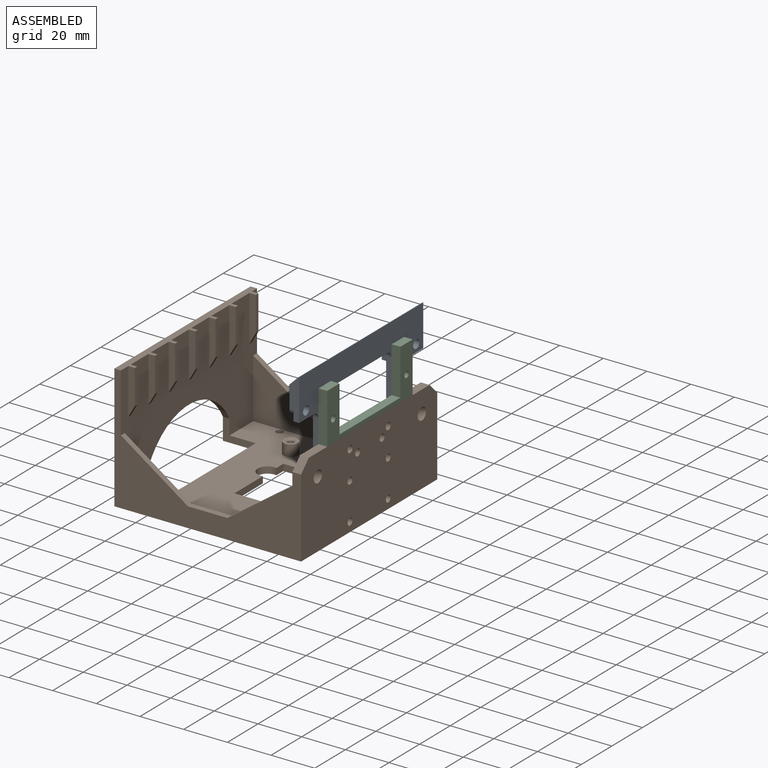
[diagram: assembled view]
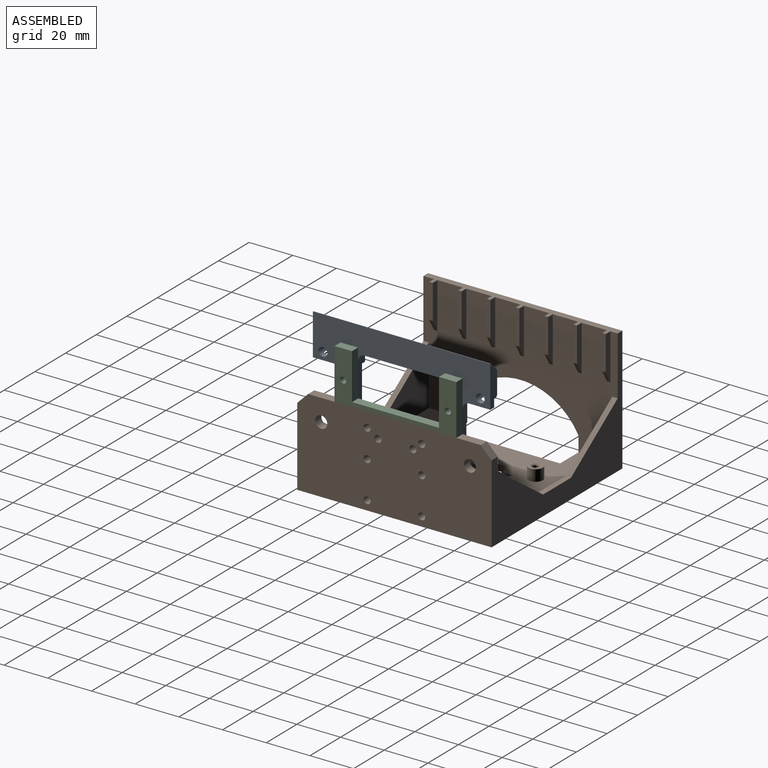
[diagram: assembled view, second angle]
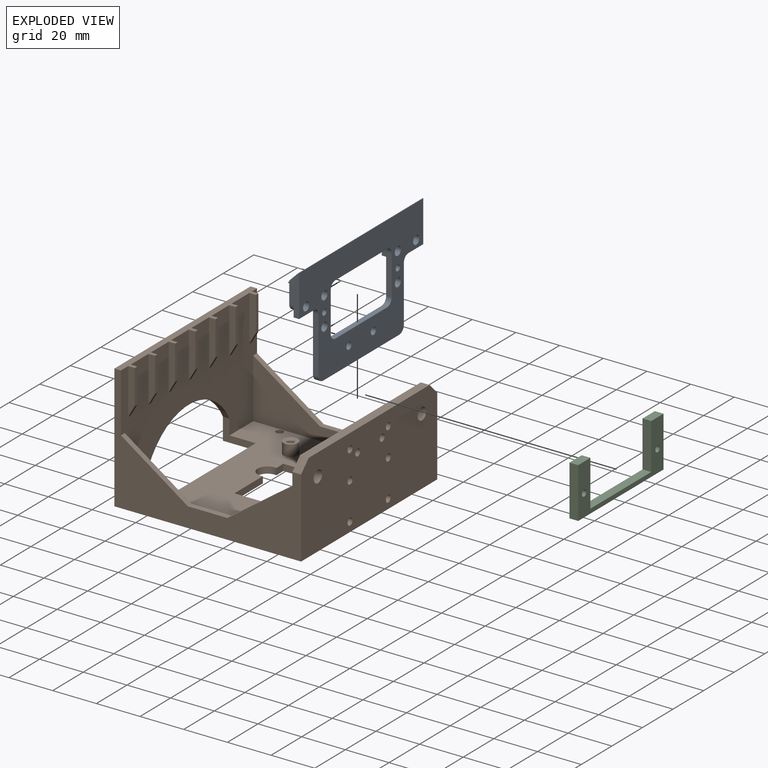
[diagram: exploded view]
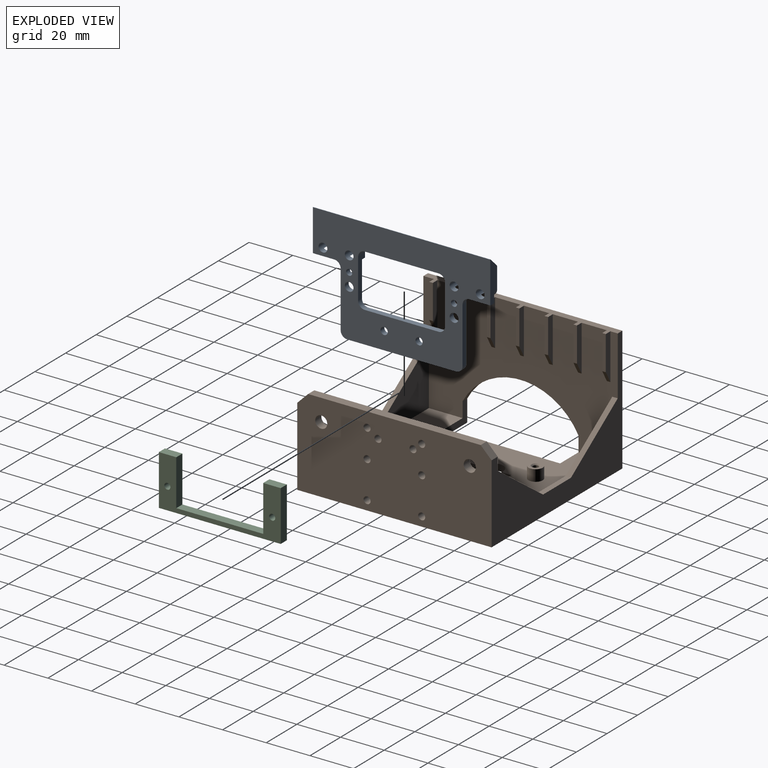
[diagram: exploded view, second angle]
ASSEMBLY  parts=3 mates=2
PART A: 45 faces, bbox 81.2x7.3x50.5 mm
  f0: plane 81.2x12.75mm, normal (0,-1,0), area 582.5mm2, adj f2,f3,f4,f5,f6,f8,f9,f11
  f1: plane 81.2x50.5mm, normal (0,1,0), area 2242.2mm2, adj f8,f9,f10,f12,f13,f14,f15,f16
  f2: plane 9.35x2mm, normal (0,0,-1), area 18.7mm2, adj f0,f7,f25,f30
  f3: plane 2x0.28mm, normal (0,0,-1), area 0.6mm2, adj f0,f7,f28,f39
  f4: plane 9.35x2mm, normal (0,0,-1), area 18.7mm2, adj f0,f7,f27,f28
  f5: plane 2.78x2mm, normal (0,0,-1), area 5.6mm2, adj f0,f7,f22,f25
  f6: plane 2x0.28mm, normal (0,0,-1), area 0.6mm2, adj f0,f7,f30,f40
  f7: plane 81.2x36.5mm, normal (0,-1,0), area 1107.5mm2, adj f2,f3,f4,f5,f6,f8,f9,f11
  f8: plane 19x4.5mm, normal (-1,0,0), area 66.5mm2, adj f0,f1,f7,f10,f13,f40,f44
  f9: plane 19x4.5mm, normal (1,0,0), area 66.5mm2, adj f0,f1,f7,f10,f14,f39,f44
  f10: plane 81.2x0.25mm, normal (0,0,1), area 20.3mm2, adj f1,f8,f9,f44
  f11: plane 2.78x2mm, normal (0,0,-1), area 5.6mm2, adj f0,f7,f23,f27
  f12: plane 25.5x2.5mm, normal (-1,0,0), area 63.8mm2, adj f1,f7,f36,f37
  f13: plane 9.7x2.5mm, normal (0,0,-1), area 24.3mm2, adj f1,f7,f8,f37
  f14: plane 9.7x2.5mm, normal (0,0,-1), area 24.3mm2, adj f1,f7,f9,f38
  f15: plane 25.5x2.5mm, normal (1,0,0), area 63.8mm2, adj f1,f7,f35,f38
  f16: cylinder r=1.4mm len=2.8mm, axis (0,1,0), area 22mm2, adj f1,f7
  f17: plane 49.8x2.5mm, normal (0,0,-1), area 124.5mm2, adj f1,f7,f35,f36
  f18: cylinder r=1.65mm len=3.3mm, axis (0,1,0), area 25.9mm2, adj f1,f7
  f19: cylinder r=1.65mm len=3.3mm, axis (0,1,0), area 25.9mm2, adj f1,f7
  f20: cylinder r=1.4mm len=2.8mm, axis (0,1,0), area 22mm2, adj f1,f7
  f21: plane 33.8x4.5mm, normal (0,0,-1), area 152.1mm2, adj f0,f1,f33,f34
  f22: plane 18.15x4.5mm, normal (1,0,0), area 49.4mm2, adj f0,f1,f5,f7,f31,f34
  f23: plane 18.15x4.5mm, normal (-1,0,0), area 49.4mm2, adj f0,f1,f7,f11,f32,f33
  f24: plane 33.8x2.5mm, normal (0,0,1), area 84.5mm2, adj f1,f7,f31,f32
  f25: cylinder r=2mm len=4.5mm, axis (0,1,0), area 50.8mm2, adj f0,f1,f2,f5,f7
  f26: cylinder r=2mm len=4mm, axis (0,1,0), area 31.4mm2, adj f1,f7
  f27: cylinder r=2mm len=4.5mm, axis (0,1,0), area 50.8mm2, adj f0,f1,f4,f7,f11
  f28: cylinder r=2mm len=4.5mm, axis (0,1,0), area 50.8mm2, adj f0,f1,f3,f4,f7
  f29: cylinder r=2mm len=4mm, axis (0,1,0), area 31.4mm2, adj f1,f7
  f30: cylinder r=2mm len=4.5mm, axis (0,1,0), area 50.8mm2, adj f0,f1,f2,f6,f7
  f31: cylinder r=3mm len=3mm, axis (0,-1,0), area 11.8mm2, adj f1,f7,f22,f24
  f32: cylinder r=3mm len=3mm, axis (0,1,0), area 11.8mm2, adj f1,f7,f23,f24
  f33: cylinder r=3mm len=4.5mm, axis (0,-1,0), area 21.2mm2, adj f0,f1,f21,f23
  f34: cylinder r=3mm len=4.5mm, axis (0,1,0), area 21.2mm2, adj f0,f1,f21,f22
  f35: cylinder r=3mm len=3mm, axis (0,-1,0), area 11.8mm2, adj f1,f7,f15,f17
  f36: cylinder r=3mm len=3mm, axis (0,1,0), area 11.8mm2, adj f1,f7,f12,f17
  f37: cylinder r=3mm len=3mm, axis (0,-1,0), area 11.8mm2, adj f1,f7,f12,f13
  f38: cylinder r=3mm len=3mm, axis (0,-1,0), area 11.8mm2, adj f1,f7,f14,f15
  f39: cylinder r=3mm len=3mm, axis (0,1,0), area 9.4mm2, adj f0,f3,f7,f9
  f40: cylinder r=3mm len=3mm, axis (0,-1,0), area 9.4mm2, adj f0,f6,f7,f8
  f41: plane 2.75x2.75mm, normal (-1,0,0), area 3.8mm2, adj f0,f42,f44
  f42: plane 75.34x2.75mm, normal (0,0,-1), area 207.2mm2, adj f0,f41,f43,f44
  f43: plane 2.75x2.75mm, normal (1,0,0), area 3.8mm2, adj f0,f42,f44
  f44: plane 81.2x7mm, normal (0,-0.71,0.71), area 781mm2, adj f0,f8,f9,f10,f41,f42,f43
PART B: 94 faces, bbox 85.5x89x57 mm
  f0: plane 84x78.5mm, normal (0,0,1), area 4050.5mm2, adj f1,f2,f4,f9,f10,f11,f12,f15
  f1: plane 89x54mm, normal (1,0,0), area 3457.6mm2, adj f0,f6,f8,f37,f53,f54,f55,f58
  f2: plane 89x38mm, normal (-1,0,0), area 3110.2mm2, adj f0,f3,f6,f8,f36,f38,f39,f40
  f3: plane 23.04x9mm, normal (0,0,1), area 207.3mm2, adj f2,f15,f40,f42
  f4: plane 4.61x3mm, normal (1,0,0), area 13.8mm2, adj f0,f5,f11,f35
  f5: plane 89x85.5mm, normal (0,0,-1), area 5230.7mm2, adj f4,f6,f7,f8,f9,f10,f11,f12
  f6: plane 85.5x57mm, normal (0,1,0), area 1658.5mm2, adj f1,f2,f5,f7,f13,f37,f39,f55
  f7: plane 89x57mm, normal (-1,0,0), area 3941mm2, adj f5,f6,f8,f37,f87,f88,f89
  f8: plane 85.5x57mm, normal (0,-1,0), area 1660.1mm2, adj f1,f2,f5,f7,f13,f37,f38,f51
  f9: plane 38.52x3mm, normal (0,1,0), area 115.6mm2, adj f0,f5,f10,f15
  f10: plane 18.61x3mm, normal (1,0,0), area 55.8mm2, adj f0,f5,f9,f35
  f11: plane 38.52x3mm, normal (0,-1,0), area 115.6mm2, adj f0,f4,f5,f15
  f12: cylinder r=1.6mm len=3.2mm, axis (0,0,-1), area 30.2mm2, adj f0,f5
  f13: plane 89x41mm, normal (1,0,0), area 3512.1mm2, adj f5,f6,f8,f36,f38,f39,f40,f41
  f14: cylinder r=1.4mm len=7.7mm, axis (0,0,-1), area 67.7mm2, adj f5,f92
  f15: plane 32x3mm, normal (-1,0,0), area 95.1mm2, adj f0,f3,f5,f9,f11,f40,f42
  f16: cylinder r=1.4mm len=7.7mm, axis (0,0,-1), area 67.7mm2, adj f5,f93
  f17: cylinder r=1.4mm len=7.7mm, axis (0,0,-1), area 67.7mm2, adj f5,f91
  f18: cylinder r=1.6mm len=3.2mm, axis (0,0,-1), area 30.2mm2, adj f0,f5
  f19: cylinder r=3.25mm len=6.5mm, axis (0,0,-1), area 106.2mm2, adj f0,f20
  f20: plane 6.5x6.5mm, normal (0,0,1), area 21.8mm2, adj f19,f93
  f21: cylinder r=3.25mm len=6.5mm, axis (0,0,-1), area 106.2mm2, adj f0,f22
  f22: plane 6.5x6.5mm, normal (0,0,1), area 21.8mm2, adj f21,f92
  f23: cylinder r=3.25mm len=6.5mm, axis (0,0,-1), area 106.2mm2, adj f0,f24
  f24: plane 6.5x6.5mm, normal (0,0,1), area 21.8mm2, adj f23,f91
  f25: cylinder r=4.5mm len=9mm, axis (0,0,1), area 84.8mm2, adj f0,f5
  f26: plane 9.18x3mm, normal (0,-1,0), area 27.5mm2, adj f0,f5,f27,f29
  f27: plane 8.06x3mm, normal (1,0,0), area 24.2mm2, adj f0,f5,f26,f28
  f28: plane 9.18x3mm, normal (0,1,0), area 27.5mm2, adj f0,f5,f27,f29
  f29: plane 8.06x3mm, normal (-1,0,0), area 24.2mm2, adj f0,f5,f26,f28
  f30: plane 8.85x3mm, normal (0,-1,0), area 26.5mm2, adj f0,f5,f31,f33
  f31: plane 8.44x3mm, normal (1,0,0), area 25.3mm2, adj f0,f5,f30,f32
  f32: plane 8.85x3mm, normal (0,1,0), area 26.5mm2, adj f0,f5,f31,f33
  f33: plane 8.44x3mm, normal (-1,0,0), area 25.3mm2, adj f0,f5,f30,f32
  f34: cylinder r=4.5mm len=9mm, axis (0,0,1), area 84.8mm2, adj f0,f5
  f35: cylinder r=4.5mm len=9mm, axis (0,0,1), area 48.3mm2, adj f0,f4,f5,f10
  f36: plane 79x4mm, normal (0,0,1), area 316mm2, adj f2,f13,f38,f39
  f37: plane 89x6mm, normal (0,0,1), area 301.2mm2, adj f1,f6,f7,f8,f59,f60,f61,f62
  f38: plane 5x5mm, normal (0,-0.71,0.71), area 28.3mm2, adj f2,f8,f13,f36
  f39: plane 5x5mm, normal (0,0.71,0.71), area 28.3mm2, adj f2,f6,f13,f36
  f40: cylinder r=1.6mm len=13mm, axis (1,0,0), area 59.2mm2, adj f0,f2,f3,f13,f15
  f41: cylinder r=1.6mm len=4mm, axis (1,0,0), area 40.2mm2, adj f2,f13
  f42: cylinder r=1.6mm len=13mm, axis (1,0,0), area 59.2mm2, adj f0,f2,f3,f13,f15
  f43: cylinder r=1.6mm len=4mm, axis (1,0,0), area 40.2mm2, adj f2,f13
  f44: cylinder r=1.6mm len=4mm, axis (1,0,0), area 39mm2, adj f2,f13,f45
  f45: plane 4x0.3mm, normal (0,1,0), area 1.2mm2, adj f2,f13,f44
  f46: cylinder r=1.6mm len=4mm, axis (1,0,0), area 40.2mm2, adj f2,f13
  f47: cylinder r=1.6mm len=4mm, axis (1,0,0), area 40.2mm2, adj f2,f13
  f48: cylinder r=2.75mm len=5.5mm, axis (1,0,0), area 69.1mm2, adj f2,f13
  f49: cylinder r=2.75mm len=5.5mm, axis (1,0,0), area 69.1mm2, adj f2,f13
  f50: cylinder r=1.6mm len=4mm, axis (1,0,0), area 40.2mm2, adj f2,f13
  f51: plane 29.72x21.17mm, normal (-0.58,0,0.81), area 91.2mm2, adj f2,f8,f52,f54
  f52: plane 18.17x2.5mm, normal (0,0,1), area 45.4mm2, adj f8,f51,f53,f54
  f53: plane 30.62x21.17mm, normal (0.57,0,0.82), area 93.1mm2, adj f1,f8,f52,f54
  f54: plane 78.5x27.17mm, normal (0,1,0), area 1109.6mm2, adj f0,f1,f2,f51,f52,f53
  f55: plane 30.58x21.18mm, normal (0.57,0,0.82), area 93mm2, adj f1,f6,f56,f58
  f56: plane 18.25x2.5mm, normal (0,0,1), area 45.6mm2, adj f6,f55,f57,f58
  f57: plane 29.66x21.18mm, normal (-0.58,0,0.81), area 91.1mm2, adj f2,f6,f56,f58
  f58: plane 78.5x27.17mm, normal (0,-1,0), area 1108mm2, adj f0,f1,f2,f55,f56,f57
  f59: plane 21x3mm, normal (0,1,0), area 55.2mm2, adj f1,f37,f61,f80
  f60: plane 21x3mm, normal (0,-1,0), area 55.2mm2, adj f1,f37,f61,f80
  f61: plane 15.8x1.63mm, normal (1,0,0), area 25.8mm2, adj f37,f59,f60,f80
  f62: plane 21x3mm, normal (0,-1,0), area 55.2mm2, adj f1,f37,f63,f81
  f63: plane 15.8x1.63mm, normal (1,0,0), area 25.8mm2, adj f37,f62,f64,f81
  f64: plane 21x3mm, normal (0,1,0), area 55.2mm2, adj f1,f37,f63,f81
  f65: plane 21x3mm, normal (0,-1,0), area 55.2mm2, adj f1,f37,f66,f82
  f66: plane 15.8x1.63mm, normal (1,0,0), area 25.8mm2, adj f37,f65,f67,f82
  f67: plane 21x3mm, normal (0,1,0), area 55.2mm2, adj f1,f37,f66,f82
  f68: plane 21x3mm, normal (0,-1,0), area 55.2mm2, adj f1,f37,f69,f83
  f69: plane 15.8x1.63mm, normal (1,0,0), area 25.8mm2, adj f37,f68,f70,f83
  f70: plane 21x3mm, normal (0,1,0), area 55.2mm2, adj f1,f37,f69,f83
  f71: plane 21x3mm, normal (0,-1,0), area 55.2mm2, adj f1,f37,f72,f84
  f72: plane 15.8x1.63mm, normal (1,0,0), area 25.8mm2, adj f37,f71,f73,f84
  f73: plane 21x3mm, normal (0,1,0), area 55.2mm2, adj f1,f37,f72,f84
  f74: plane 21x3mm, normal (0,-1,0), area 55.2mm2, adj f1,f37,f75,f85
  f75: plane 15.8x1.63mm, normal (1,0,0), area 25.8mm2, adj f37,f74,f76,f85
  f76: plane 21x3mm, normal (0,1,0), area 55.2mm2, adj f1,f37,f75,f85
  f77: plane 21x3mm, normal (0,-1,0), area 55.2mm2, adj f1,f37,f78,f86
  f78: plane 15.8x1.63mm, normal (1,0,0), area 25.8mm2, adj f37,f77,f79,f86
  f79: plane 21x3mm, normal (0,1,0), area 55.2mm2, adj f1,f37,f78,f86
  f80: plane 5.2x3mm, normal (0.87,0,-0.5), area 9.8mm2, adj f1,f59,f60,f61
  f81: plane 5.2x3mm, normal (0.87,0,-0.5), area 9.8mm2, adj f1,f62,f63,f64
  f82: plane 5.2x3mm, normal (0.87,0,-0.5), area 9.8mm2, adj f1,f65,f66,f67
  f83: plane 5.2x3mm, normal (0.87,0,-0.5), area 9.8mm2, adj f1,f68,f69,f70
  f84: plane 5.2x3mm, normal (0.87,0,-0.5), area 9.8mm2, adj f1,f71,f72,f73
  f85: plane 5.2x3mm, normal (0.87,0,-0.5), area 9.8mm2, adj f1,f74,f75,f76
  f86: plane 5.2x3mm, normal (0.87,0,-0.5), area 9.8mm2, adj f1,f77,f78,f79
  f87: plane 15x10mm, normal (0,-1,0), area 66mm2, adj f0,f1,f5,f7,f89,f90
  f88: plane 15x10mm, normal (0,1,0), area 66mm2, adj f0,f1,f5,f7,f89,f90
  f89: cylinder r=30mm len=53mm, axis (-1,0,0), area 194.9mm2, adj f1,f7,f87,f88
  f90: plane 53x3mm, normal (-1,0,0), area 159mm2, adj f0,f5,f87,f88
  f91: cone r=1.4mm half-angle=45deg, axis (0,0,1), area 7.3mm2, adj f17,f24
  f92: cone r=1.4mm half-angle=45deg, axis (0,0,1), area 7.3mm2, adj f14,f22
  f93: cone r=1.4mm half-angle=45deg, axis (0,0,1), area 7.3mm2, adj f16,f20
PART C: 12 faces, bbox 4x55.8x23.1 mm
  f0: plane 55.8x23.08mm, normal (1,0,0), area 437.4mm2, adj f1,f2,f3,f4,f5,f6,f7,f8
  f1: plane 21.07x4mm, normal (0,-1,0), area 84.3mm2, adj f0,f2,f8,f11
  f2: plane 39.8x4mm, normal (0,0,1), area 159.2mm2, adj f0,f1,f3,f11
  f3: plane 21.07x4mm, normal (0,1,0), area 84.3mm2, adj f0,f2,f4,f11
  f4: plane 8x4mm, normal (0,0,1), area 32mm2, adj f0,f3,f5,f11
  f5: plane 23.08x4mm, normal (0,-1,0), area 92.3mm2, adj f0,f4,f6,f11
  f6: plane 55.8x4mm, normal (0,0,-1), area 223.2mm2, adj f0,f5,f7,f11
  f7: plane 23.08x4mm, normal (0,1,0), area 92.3mm2, adj f0,f6,f8,f11
  f8: plane 8x4mm, normal (0,0,1), area 32mm2, adj f0,f1,f7,f11
  f9: cylinder r=1.4mm len=4mm, axis (-1,0,0), area 35.2mm2, adj f0,f11
  f10: cylinder r=1.4mm len=4mm, axis (-1,0,0), area 35.2mm2, adj f0,f11
  f11: plane 55.8x23.08mm, normal (-1,0,0), area 437.4mm2, adj f1,f2,f3,f4,f5,f6,f7,f8
PLACE A rot(axis=(0,0,-1),90deg) t=(-8.72,37.16,52.25)mm
PLACE B t=(-4.7,8.45,-4.25)mm
PLACE C t=(29.3,6.83,31.2)mm
MATE fastened C.f10 <-> A.f20  axis (-1,0,0) through (29.3,-15.55,46.75)mm
MATE fastened A.f18 <-> B.f41  axis (1,0,0) through (29.3,16.45,26.75)mm
